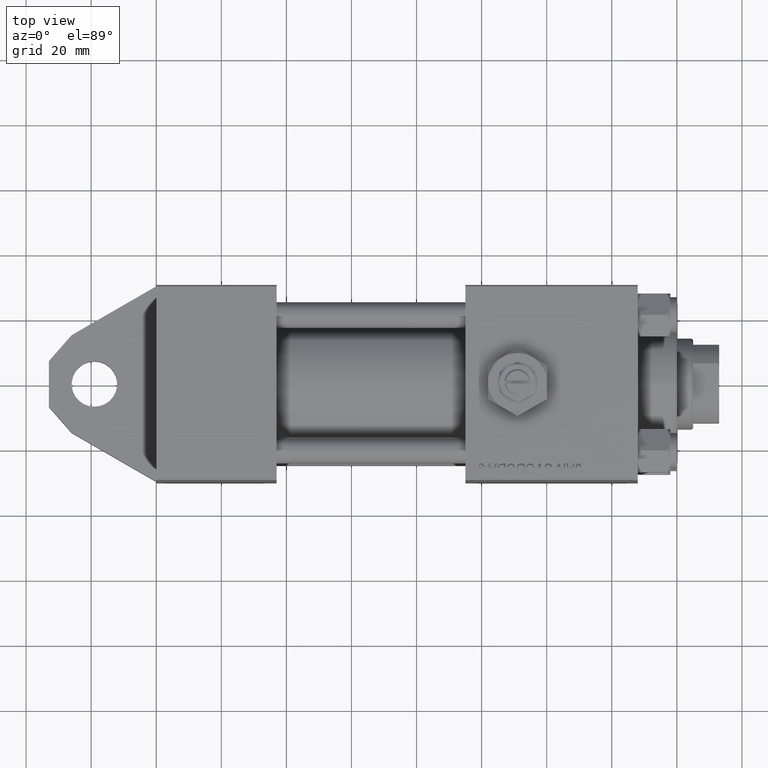
[diagram: clean part render]
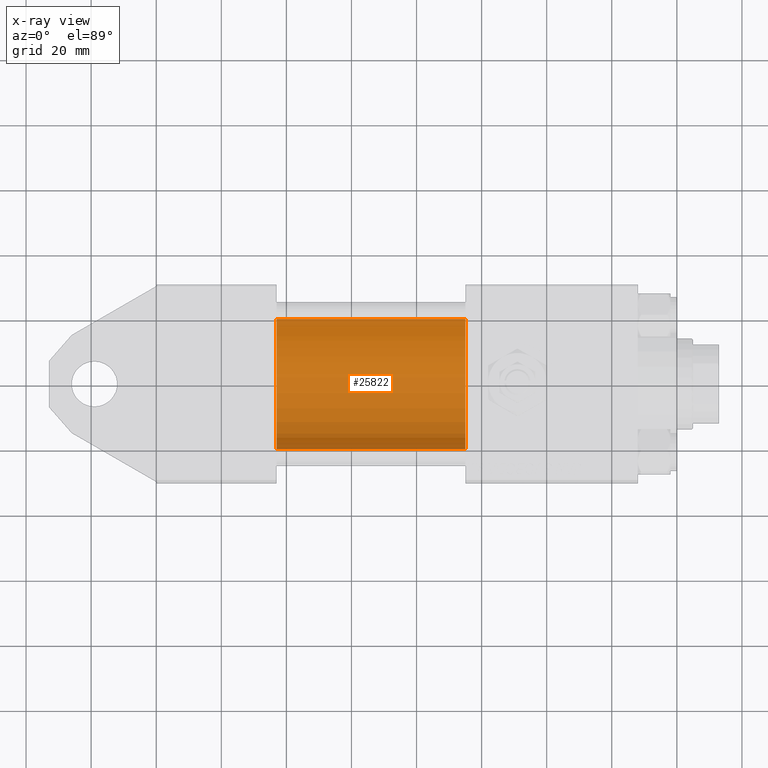
[diagram: x-ray — body ghosted, one internal face saturated and labeled with its STEP entity id]
A machine part, top view, then the same camera in x-ray: the body is ghosted and one INTERNAL B-rep face — a face not visible from any outside direction — is saturated and labeled: STEP entity #25822.
In plain terms, the highlighted cylindrical surface (partial cylindrical patch) has radius 20 mm, axis along (-1, -0, 0).
Its self-contained STEP definition (entity closure, byte-faithful):
#2239 = DIRECTION ( 'NONE',  ( 0.000000000000000000, 0.000000000000000000, -1.000000000000000000 ) ) ;
#2271 = ORIENTED_EDGE ( 'NONE', *, *, #4031, .T. ) ;
#2854 = ORIENTED_EDGE ( 'NONE', *, *, #4148, .F. ) ;
#4031 = EDGE_CURVE ( 'NONE', #43010, #12135, #18629, .T. ) ;
#4054 = CARTESIAN_POINT ( 'NONE',  ( 95.00000000000000000, -1.527916156705046464E-16, -20.00000000000000000 ) ) ;
#4148 = EDGE_CURVE ( 'NONE', #43010, #8643, #24617, .T. ) ;
#5090 = VECTOR ( 'NONE', #7910, 1000.000000000000000 ) ;
#5468 = CARTESIAN_POINT ( 'NONE',  ( 37.00000000000000000, -2.602085213965210642E-15, 20.00000000000000000 ) ) ;
#6727 = EDGE_LOOP ( 'NONE', ( #2271, #14453, #47398, #2854 ) ) ;
#7439 = LINE ( 'NONE', #4054, #5090 ) ;
#7910 = DIRECTION ( 'NONE',  ( -1.000000000000000000, -0.000000000000000000, -0.000000000000000000 ) ) ;
#8643 = VERTEX_POINT ( 'NONE', #5468 ) ;
#8791 = DIRECTION ( 'NONE',  ( 1.000000000000000000, 0.000000000000000000, 0.000000000000000000 ) ) ;
#10133 = AXIS2_PLACEMENT_3D ( 'NONE', #25103, #17606, #43707 ) ;
#12135 = VERTEX_POINT ( 'NONE', #21612 ) ;
#13124 = CARTESIAN_POINT ( 'NONE',  ( 37.00000000000000000, -2.602085213965210642E-15, 0.000000000000000000 ) ) ;
#13422 = CARTESIAN_POINT ( 'NONE',  ( 95.00000000000000000, -2.602085213965210642E-15, 0.000000000000000000 ) ) ;
#14453 = ORIENTED_EDGE ( 'NONE', *, *, #17246, .T. ) ;
#14603 = AXIS2_PLACEMENT_3D ( 'NONE', #13422, #46050, #32251 ) ;
#17246 = EDGE_CURVE ( 'NONE', #12135, #32903, #7439, .T. ) ;
#17606 = DIRECTION ( 'NONE',  ( 1.000000000000000000, 0.000000000000000000, 0.000000000000000000 ) ) ;
#18629 = CIRCLE ( 'NONE', #10133, 20.00000000000000000 ) ;
#21133 = FACE_OUTER_BOUND ( 'NONE', #6727, .T. ) ;
#21612 = CARTESIAN_POINT ( 'NONE',  ( 95.00000000000000000, -1.527916156705046464E-16, -20.00000000000000000 ) ) ;
#21950 = CARTESIAN_POINT ( 'NONE',  ( 95.00000000000000000, -2.602085213965210642E-15, 20.00000000000000000 ) ) ;
#22670 = EDGE_CURVE ( 'NONE', #8643, #32903, #43141, .T. ) ;
#24617 = LINE ( 'NONE', #21950, #34091 ) ;
#25103 = CARTESIAN_POINT ( 'NONE',  ( 95.00000000000000000, -2.602085213965210642E-15, 0.000000000000000000 ) ) ;
#25822 = ADVANCED_FACE ( 'NONE', ( #21133 ), #43131, .F. ) ;
#28354 = CARTESIAN_POINT ( 'NONE',  ( 37.00000000000000000, -1.527916156705046464E-16, -20.00000000000000000 ) ) ;
#32251 = DIRECTION ( 'NONE',  ( 0.000000000000000000, 0.000000000000000000, 1.000000000000000000 ) ) ;
#32903 = VERTEX_POINT ( 'NONE', #28354 ) ;
#34091 = VECTOR ( 'NONE', #36710, 1000.000000000000000 ) ;
#36229 = AXIS2_PLACEMENT_3D ( 'NONE', #13124, #8791, #2239 ) ;
#36710 = DIRECTION ( 'NONE',  ( -1.000000000000000000, -0.000000000000000000, -0.000000000000000000 ) ) ;
#37172 = CARTESIAN_POINT ( 'NONE',  ( 95.00000000000000000, -2.602085213965210642E-15, 20.00000000000000000 ) ) ;
#43010 = VERTEX_POINT ( 'NONE', #37172 ) ;
#43131 = CYLINDRICAL_SURFACE ( 'NONE', #14603, 20.00000000000000000 ) ;
#43141 = CIRCLE ( 'NONE', #36229, 20.00000000000000000 ) ;
#43707 = DIRECTION ( 'NONE',  ( 0.000000000000000000, 0.000000000000000000, -1.000000000000000000 ) ) ;
#46050 = DIRECTION ( 'NONE',  ( -1.000000000000000000, -0.000000000000000000, -0.000000000000000000 ) ) ;
#47398 = ORIENTED_EDGE ( 'NONE', *, *, #22670, .F. ) ;